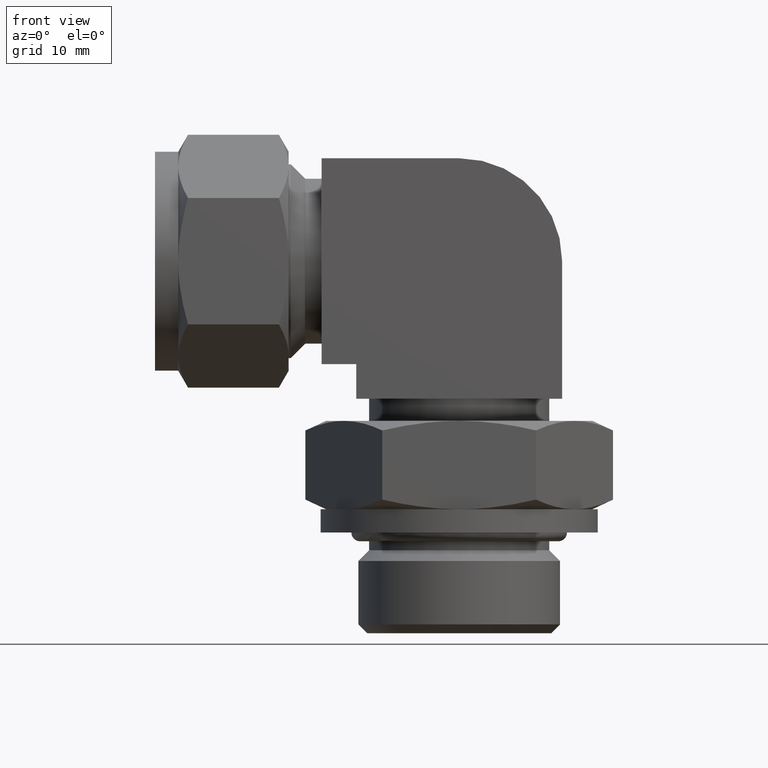
[diagram: clean part render]
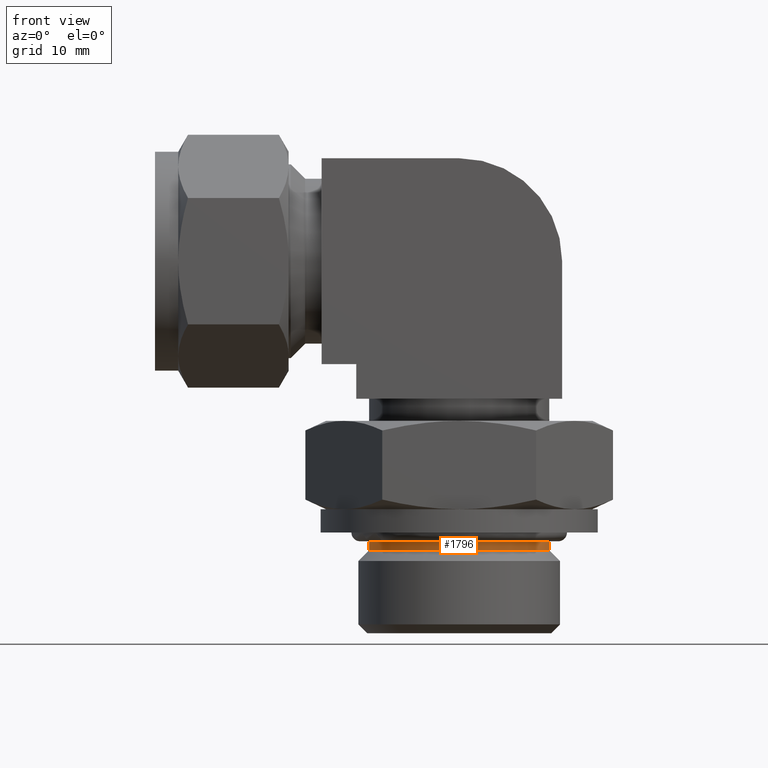
[diagram: same view with one face highlighted and labeled with its STEP entity id]
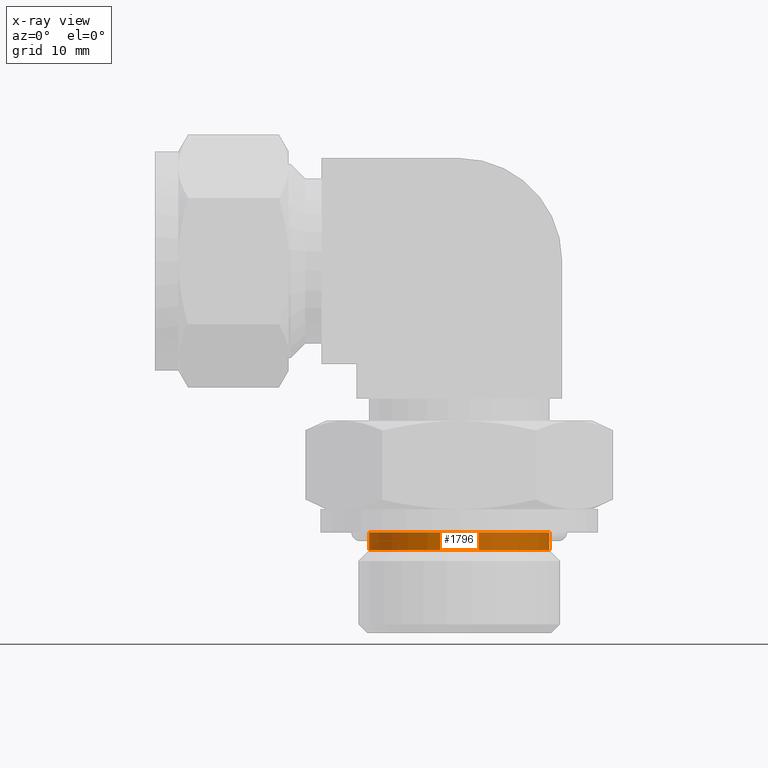
[diagram: x-ray of the same camera — body ghosted, the highlighted face saturated]
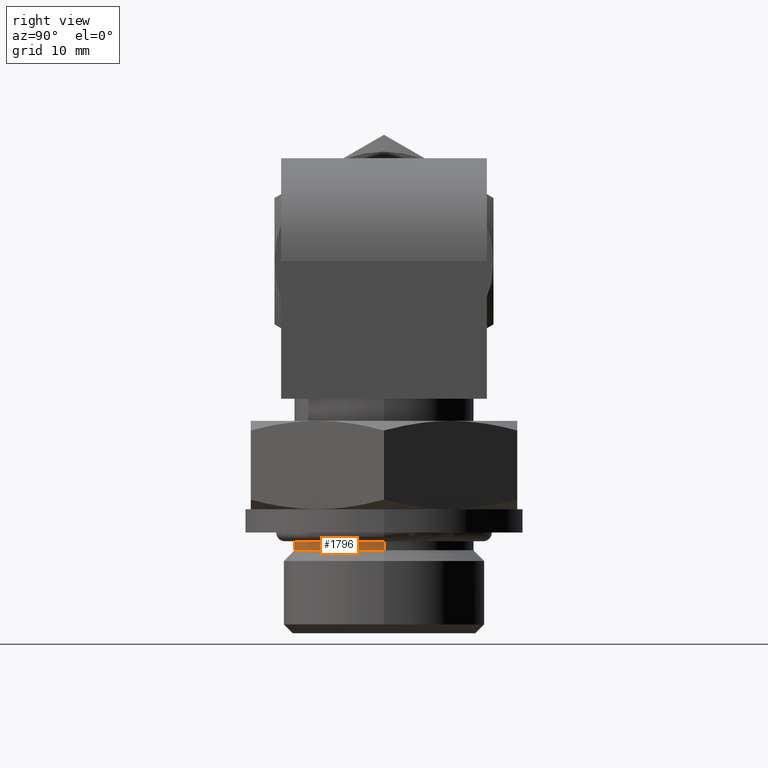
[diagram: same view with one face highlighted and labeled with its STEP entity id]
A machine part, front view. The second image highlights one B-rep face of the part: STEP entity #1796.
The next image is the same camera in x-ray: the body ghosted, the highlighted face saturated — about 0% of this face is hidden behind the body in this view.
A second angle (right view) of the same face is appended — the face is thin or edge-on in the first view.
In plain terms, the highlighted cylindrical surface (partial cylindrical patch) has radius 11.811 mm, axis along (-0, 0, 1).
Its self-contained STEP definition (entity closure, byte-faithful):
#22 = CARTESIAN_POINT ( 'NONE',  ( 39.87800000000000011, 0.000000000000000000, -37.88400000000000034 ) ) ;
#45 = CARTESIAN_POINT ( 'NONE',  ( 39.87800000000000011, 0.000000000000000000, -27.95899999999999963 ) ) ;
#84 = CARTESIAN_POINT ( 'NONE',  ( 39.87800000000000011, 0.000000000000000000, -35.56000000000000227 ) ) ;
#109 = CIRCLE ( 'NONE', #1400, 11.81100000000000172 ) ;
#125 = DIRECTION ( 'NONE',  ( -1.000000000000000000, 0.000000000000000000, 0.000000000000000000 ) ) ;
#170 = EDGE_CURVE ( 'NONE', #2432, #1749, #109, .T. ) ;
#285 = VECTOR ( 'NONE', #997, 1000.000000000000000 ) ;
#375 = ORIENTED_EDGE ( 'NONE', *, *, #170, .T. ) ;
#413 = CARTESIAN_POINT ( 'NONE',  ( 51.68900000000000006, -1.446382564499609926E-15, -37.88400000000000034 ) ) ;
#508 = VERTEX_POINT ( 'NONE', #2139 ) ;
#543 = EDGE_LOOP ( 'NONE', ( #895, #863, #2228, #375 ) ) ;
#712 = CARTESIAN_POINT ( 'NONE',  ( 51.68900000000000006, -1.446382564499609926E-15, -35.56000000000000227 ) ) ;
#792 = DIRECTION ( 'NONE',  ( -1.110223024625159992E-16, 0.000000000000000000, 1.000000000000000000 ) ) ;
#863 = ORIENTED_EDGE ( 'NONE', *, *, #1937, .T. ) ;
#895 = ORIENTED_EDGE ( 'NONE', *, *, #1728, .F. ) ;
#908 = CARTESIAN_POINT ( 'NONE',  ( 28.06700000000000017, 1.446382564499609926E-15, -27.95899999999999963 ) ) ;
#921 = DIRECTION ( 'NONE',  ( -1.110223024625159992E-16, 0.000000000000000000, 1.000000000000000000 ) ) ;
#997 = DIRECTION ( 'NONE',  ( 1.110223024625159992E-16, 0.000000000000000000, -1.000000000000000000 ) ) ;
#1088 = DIRECTION ( 'NONE',  ( 1.110223024625159992E-16, 0.000000000000000000, -1.000000000000000000 ) ) ;
#1323 = CARTESIAN_POINT ( 'NONE',  ( 28.06700000000000017, -1.446382564499609926E-15, -35.56000000000000227 ) ) ;
#1363 = VERTEX_POINT ( 'NONE', #413 ) ;
#1372 = DIRECTION ( 'NONE',  ( -1.000000000000000000, 0.000000000000000000, 0.000000000000000000 ) ) ;
#1400 = AXIS2_PLACEMENT_3D ( 'NONE', #84, #1088, #125 ) ;
#1492 = VECTOR ( 'NONE', #921, 1000.000000000000000 ) ;
#1535 = CIRCLE ( 'NONE', #2131, 11.81100000000000172 ) ;
#1577 = CYLINDRICAL_SURFACE ( 'NONE', #2491, 11.81100000000000172 ) ;
#1728 = EDGE_CURVE ( 'NONE', #508, #1749, #1878, .T. ) ;
#1738 = DIRECTION ( 'NONE',  ( -1.110223024625159992E-16, 0.000000000000000000, 1.000000000000000000 ) ) ;
#1749 = VERTEX_POINT ( 'NONE', #1323 ) ;
#1779 = LINE ( 'NONE', #2344, #285 ) ;
#1796 = ADVANCED_FACE ( 'NONE', ( #1949 ), #1577, .T. ) ;
#1878 = LINE ( 'NONE', #908, #1492 ) ;
#1937 = EDGE_CURVE ( 'NONE', #508, #1363, #1535, .T. ) ;
#1949 = FACE_OUTER_BOUND ( 'NONE', #543, .T. ) ;
#2131 = AXIS2_PLACEMENT_3D ( 'NONE', #22, #792, #1372 ) ;
#2138 = DIRECTION ( 'NONE',  ( -1.000000000000000000, 0.000000000000000000, 0.000000000000000000 ) ) ;
#2139 = CARTESIAN_POINT ( 'NONE',  ( 28.06700000000000017, 1.215421806168710060E-15, -37.88400000000000034 ) ) ;
#2228 = ORIENTED_EDGE ( 'NONE', *, *, #2342, .F. ) ;
#2342 = EDGE_CURVE ( 'NONE', #2432, #1363, #1779, .T. ) ;
#2344 = CARTESIAN_POINT ( 'NONE',  ( 51.68900000000000006, -1.446382564499609926E-15, -27.95899999999999963 ) ) ;
#2432 = VERTEX_POINT ( 'NONE', #712 ) ;
#2491 = AXIS2_PLACEMENT_3D ( 'NONE', #45, #1738, #2138 ) ;